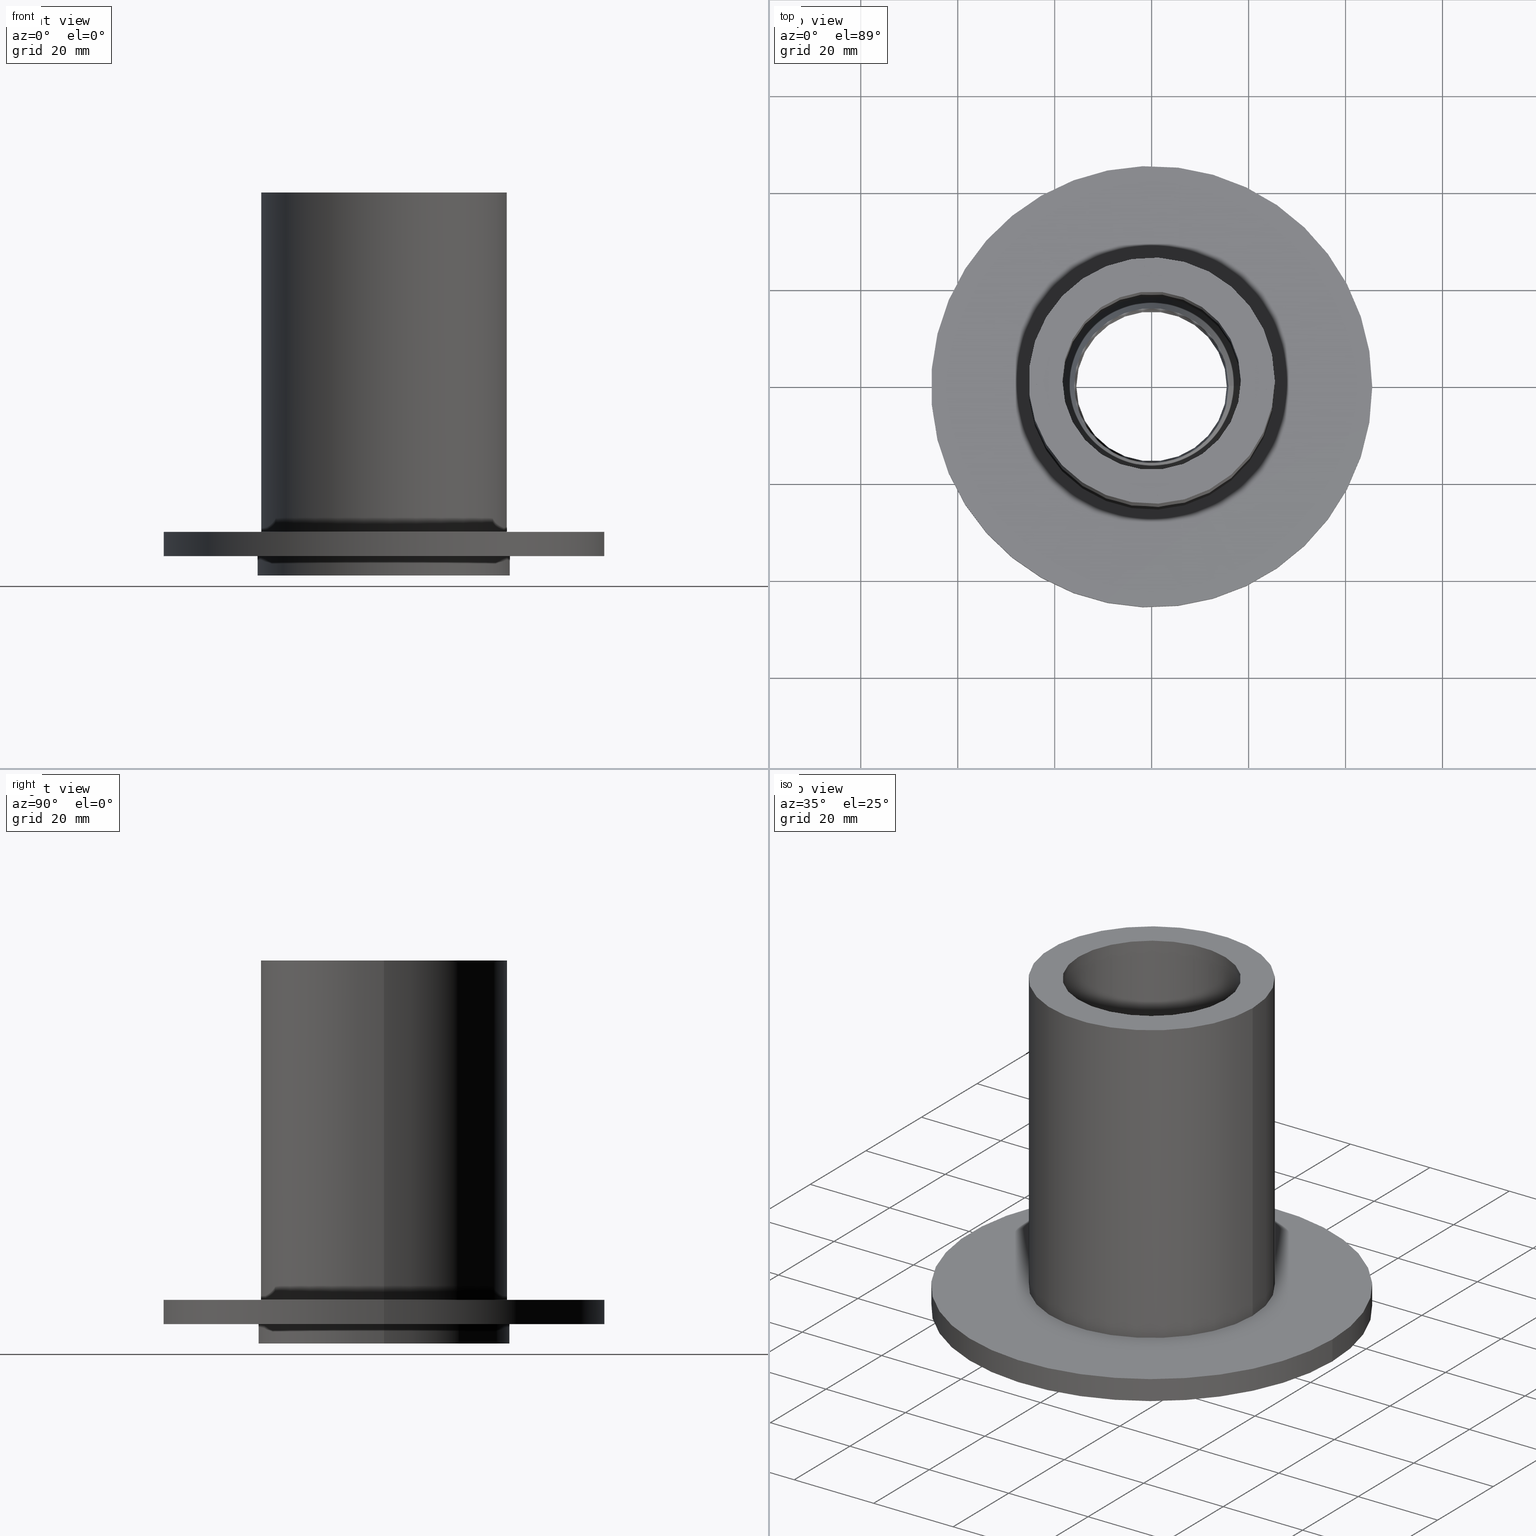
[diagram: canonical four-view strip — front | top / right | iso, engineering-drawing reading convention]
A machine part, canonical four-view strip (front | top / right | iso — engineering-drawing reading convention). The complete STEP part file that produces these views, byte-faithful:
ISO-10303-21;
HEADER;
/****************************************************************
 * Generated by software with PDElib inside                    *
 * PDElib Version v51a, created Wed 11/30/2011                  *
 * ITI Transcendata (http://www.transcendata.com/)              *
 ****************************************************************/
FILE_DESCRIPTION((''),'2;1');
FILE_NAME('N:\\Projects\\Ongoing_Projects\\12403 Transit Designer\\Product-data\\Product Data\\Transit designer Cad Generator\\F\S\vr att skapa STEP\\SLEEV-IT WT-MAR32M.stp','2014-11-17T14:09:10',('se-emikul'),(''),'Autodesk Inventor 2013','Autodesk Inventor 2013','');
FILE_SCHEMA(('AUTOMOTIVE_DESIGN { 1 0 10303 214 1 1 1 1 }'));
ENDSEC;
DATA;
#5=APPLICATION_CONTEXT('automotive design');
#6=APPLICATION_PROTOCOL_DEFINITION('International Standard','automotive_design',2001,#5);
#7=PRODUCT_CONTEXT('',#5,'mechanical');
#8=PRODUCT('SLEEV-IT WT-MAR32M','SLEEV-IT WT-MAR32M',$,(#7));
#9=PRODUCT_RELATED_PRODUCT_CATEGORY('part',$,(#8));
#10=PRODUCT_DEFINITION_FORMATION('',$,#8);
#11=PRODUCT_DEFINITION_CONTEXT('part definition',#5,'design');
#12=PRODUCT_DEFINITION('',$,#10,#11);
#18=(NAMED_UNIT(*)PLANE_ANGLE_UNIT()SI_UNIT($,.RADIAN.));
#19=DIMENSIONAL_EXPONENTS(0.0,0.0,0.0,0.0,0.0,0.0,0.0);
#20=PLANE_ANGLE_MEASURE_WITH_UNIT(PLANE_ANGLE_MEASURE(0.0174532925),#18);
#24=(CONVERSION_BASED_UNIT('DEGREE',#20)NAMED_UNIT(#19)PLANE_ANGLE_UNIT());
#28=(NAMED_UNIT(*)SI_UNIT($,.STERADIAN.)SOLID_ANGLE_UNIT());
#32=(LENGTH_UNIT()NAMED_UNIT(*)SI_UNIT(.MILLI.,.METRE.));
#34=UNCERTAINTY_MEASURE_WITH_UNIT(LENGTH_MEASURE(0.01),#32,'DISTANCE_ACCURACY_VALUE','');
#36=(GEOMETRIC_REPRESENTATION_CONTEXT(3)GLOBAL_UNCERTAINTY_ASSIGNED_CONTEXT((#34))GLOBAL_UNIT_ASSIGNED_CONTEXT((#24,#28,#32))REPRESENTATION_CONTEXT('None','None'));
#37=AXIS2_PLACEMENT_3D('',#38,#39,#40);
#38=CARTESIAN_POINT('',(0.0,0.0,0.0));
#39=DIRECTION('',(0.0,0.0,1.0));
#40=DIRECTION('',(1.0,0.0,0.0));
#41=SHAPE_REPRESENTATION('',(#37),#36);
#42=PRODUCT_DEFINITION_SHAPE('','',#12);
#43=SHAPE_DEFINITION_REPRESENTATION(#42,#41);
#49=(NAMED_UNIT(*)PLANE_ANGLE_UNIT()SI_UNIT($,.RADIAN.));
#50=DIMENSIONAL_EXPONENTS(0.0,0.0,0.0,0.0,0.0,0.0,0.0);
#51=PLANE_ANGLE_MEASURE_WITH_UNIT(PLANE_ANGLE_MEASURE(0.0174532925),#49);
#55=(CONVERSION_BASED_UNIT('DEGREE',#51)NAMED_UNIT(#50)PLANE_ANGLE_UNIT());
#59=(NAMED_UNIT(*)SI_UNIT($,.STERADIAN.)SOLID_ANGLE_UNIT());
#63=(LENGTH_UNIT()NAMED_UNIT(*)SI_UNIT(.MILLI.,.METRE.));
#65=UNCERTAINTY_MEASURE_WITH_UNIT(LENGTH_MEASURE(0.000001),#63,'DISTANCE_ACCURACY_VALUE','');
#67=(GEOMETRIC_REPRESENTATION_CONTEXT(3)GLOBAL_UNCERTAINTY_ASSIGNED_CONTEXT((#65))GLOBAL_UNIT_ASSIGNED_CONTEXT((#55,#59,#63))REPRESENTATION_CONTEXT('','3D'));
#68=CARTESIAN_POINT('',(0.0,0.0,0.0));
#69=DIRECTION('',(0.0,0.0,1.0));
#70=DIRECTION('',(-1.0,0.0,0.0));
#71=AXIS2_PLACEMENT_3D('',#68,#69,#70);
#72=CYLINDRICAL_SURFACE('',#71,23.800000000000004);
#73=CARTESIAN_POINT('',(23.800000000000004,2.914659E-015,70.0));
#74=VERTEX_POINT('',#73);
#75=CARTESIAN_POINT('',(0.0,0.0,70.0));
#76=DIRECTION('',(0.0,0.0,-1.0));
#77=DIRECTION('',(-1.0,0.0,0.0));
#78=AXIS2_PLACEMENT_3D('',#75,#76,#77);
#79=CIRCLE('',#78,23.800000000000004);
#80=EDGE_CURVE('',#74,#74,#79,.T.);
#81=ORIENTED_EDGE('',*,*,#80,.F.);
#82=EDGE_LOOP('',(#81));
#83=FACE_OUTER_BOUND('',#82,.T.);
#84=CARTESIAN_POINT('',(23.800000000000004,2.914659E-015,0.0));
#85=VERTEX_POINT('',#84);
#86=CARTESIAN_POINT('',(0.0,0.0,0.0));
#87=DIRECTION('',(0.0,0.0,1.0));
#88=DIRECTION('',(-1.0,0.0,0.0));
#89=AXIS2_PLACEMENT_3D('',#86,#87,#88);
#90=CIRCLE('',#89,23.800000000000004);
#91=EDGE_CURVE('',#85,#85,#90,.T.);
#92=ORIENTED_EDGE('',*,*,#91,.F.);
#93=EDGE_LOOP('',(#92));
#94=FACE_BOUND('',#93,.T.);
#95=ADVANCED_FACE('',(#83,#94),#72,.F.);
#96=CARTESIAN_POINT('',(0.0,0.0,0.0));
#97=DIRECTION('',(0.0,0.0,1.0));
#98=DIRECTION('',(-1.0,0.0,0.0));
#99=AXIS2_PLACEMENT_3D('',#96,#97,#98);
#100=CYLINDRICAL_SURFACE('',#99,25.399999999999999);
#101=CARTESIAN_POINT('',(25.399999999999999,3.110603E-015,70.0));
#102=VERTEX_POINT('',#101);
#103=CARTESIAN_POINT('',(0.0,0.0,70.0));
#104=DIRECTION('',(0.0,0.0,-1.0));
#105=DIRECTION('',(-1.0,0.0,0.0));
#106=AXIS2_PLACEMENT_3D('',#103,#104,#105);
#107=CIRCLE('',#106,25.399999999999999);
#108=EDGE_CURVE('',#102,#102,#107,.T.);
#109=ORIENTED_EDGE('',*,*,#108,.T.);
#110=EDGE_LOOP('',(#109));
#111=FACE_OUTER_BOUND('',#110,.T.);
#112=CARTESIAN_POINT('',(25.399999999999999,3.110603E-015,0.0));
#113=VERTEX_POINT('',#112);
#114=CARTESIAN_POINT('',(0.0,0.0,0.0));
#115=DIRECTION('',(0.0,0.0,-1.0));
#116=DIRECTION('',(-1.0,0.0,0.0));
#117=AXIS2_PLACEMENT_3D('',#114,#115,#116);
#118=CIRCLE('',#117,25.399999999999999);
#119=EDGE_CURVE('',#113,#113,#118,.T.);
#120=ORIENTED_EDGE('',*,*,#119,.F.);
#121=EDGE_LOOP('',(#120));
#122=FACE_BOUND('',#121,.T.);
#123=ADVANCED_FACE('',(#111,#122),#100,.T.);
#124=CARTESIAN_POINT('',(0.0,0.0,70.0));
#125=DIRECTION('',(0.0,0.0,-1.0));
#126=DIRECTION('',(-1.0,0.0,0.0));
#127=AXIS2_PLACEMENT_3D('',#124,#125,#126);
#128=PLANE('',#127);
#129=ORIENTED_EDGE('',*,*,#108,.F.);
#130=EDGE_LOOP('',(#129));
#131=FACE_OUTER_BOUND('',#130,.T.);
#132=ORIENTED_EDGE('',*,*,#80,.T.);
#133=EDGE_LOOP('',(#132));
#134=FACE_BOUND('',#133,.T.);
#135=ADVANCED_FACE('',(#131,#134),#128,.F.);
#136=CARTESIAN_POINT('',(0.0,0.0,0.0));
#137=DIRECTION('',(0.0,0.0,-1.0));
#138=DIRECTION('',(-1.0,0.0,0.0));
#139=AXIS2_PLACEMENT_3D('',#136,#137,#138);
#140=PLANE('',#139);
#141=ORIENTED_EDGE('',*,*,#119,.T.);
#142=EDGE_LOOP('',(#141));
#143=FACE_OUTER_BOUND('',#142,.T.);
#144=ORIENTED_EDGE('',*,*,#91,.T.);
#145=EDGE_LOOP('',(#144));
#146=FACE_BOUND('',#145,.T.);
#147=ADVANCED_FACE('',(#143,#146),#140,.T.);
#148=CLOSED_SHELL('',(#95,#123,#135,#147));
#149=MANIFOLD_SOLID_BREP('Solid1',#148);
#150=COLOUR_RGB('',0.878431379795074,0.874509811401367,0.858823537826538);
#151=FILL_AREA_STYLE_COLOUR('',#150);
#152=FILL_AREA_STYLE('',(#151));
#153=SURFACE_STYLE_FILL_AREA(#152);
#154=SURFACE_SIDE_STYLE('',(#153));
#155=SURFACE_STYLE_USAGE(.BOTH.,#154);
#156=PRESENTATION_STYLE_ASSIGNMENT((#155));
#157=STYLED_ITEM('',(#156),#95);
#158=STYLED_ITEM('',(#156),#123);
#159=STYLED_ITEM('',(#156),#135);
#160=STYLED_ITEM('',(#156),#147);
#161=MECHANICAL_DESIGN_GEOMETRIC_PRESENTATION_REPRESENTATION('',(#157,#158,#159,#160,#169,#283,#569,#772),#67);
#162=COLOUR_RGB('Default',0.75,0.75,0.75);
#163=FILL_AREA_STYLE_COLOUR('Default',#162);
#164=FILL_AREA_STYLE('Default',(#163));
#165=SURFACE_STYLE_FILL_AREA(#164);
#166=SURFACE_SIDE_STYLE('Default',(#165));
#167=SURFACE_STYLE_USAGE(.BOTH.,#166);
#168=PRESENTATION_STYLE_ASSIGNMENT((#167));
#169=STYLED_ITEM('',(#168),#149);
#170=ADVANCED_BREP_SHAPE_REPRESENTATION('ABSR',(#149,#277,#549,#755),#36);
#171=SHAPE_REPRESENTATION_RELATIONSHIP('SRR','None',#170,#41);
#177=(NAMED_UNIT(*)PLANE_ANGLE_UNIT()SI_UNIT($,.RADIAN.));
#178=DIMENSIONAL_EXPONENTS(0.0,0.0,0.0,0.0,0.0,0.0,0.0);
#179=PLANE_ANGLE_MEASURE_WITH_UNIT(PLANE_ANGLE_MEASURE(0.0174532925),#177);
#183=(CONVERSION_BASED_UNIT('DEGREE',#179)NAMED_UNIT(#178)PLANE_ANGLE_UNIT());
#187=(NAMED_UNIT(*)SI_UNIT($,.STERADIAN.)SOLID_ANGLE_UNIT());
#191=(LENGTH_UNIT()NAMED_UNIT(*)SI_UNIT(.MILLI.,.METRE.));
#193=UNCERTAINTY_MEASURE_WITH_UNIT(LENGTH_MEASURE(0.000001),#191,'DISTANCE_ACCURACY_VALUE','');
#195=(GEOMETRIC_REPRESENTATION_CONTEXT(3)GLOBAL_UNCERTAINTY_ASSIGNED_CONTEXT((#193))GLOBAL_UNIT_ASSIGNED_CONTEXT((#183,#187,#191))REPRESENTATION_CONTEXT('','3D'));
#196=CARTESIAN_POINT('',(0.0,0.0,-5.0));
#197=DIRECTION('',(0.0,0.0,1.0));
#198=DIRECTION('',(-1.0,0.0,0.0));
#199=AXIS2_PLACEMENT_3D('',#196,#197,#198);
#200=CYLINDRICAL_SURFACE('',#199,19.050000000000004);
#201=CARTESIAN_POINT('',(19.050000000000004,2.332952E-015,0.0));
#202=VERTEX_POINT('',#201);
#203=CARTESIAN_POINT('',(0.0,0.0,0.0));
#204=DIRECTION('',(0.0,0.0,-1.0));
#205=DIRECTION('',(-1.0,0.0,0.0));
#206=AXIS2_PLACEMENT_3D('',#203,#204,#205);
#207=CIRCLE('',#206,19.050000000000004);
#208=EDGE_CURVE('',#202,#202,#207,.T.);
#209=ORIENTED_EDGE('',*,*,#208,.F.);
#210=EDGE_LOOP('',(#209));
#211=FACE_OUTER_BOUND('',#210,.T.);
#212=CARTESIAN_POINT('',(19.050000000000004,2.332952E-015,-5.0));
#213=VERTEX_POINT('',#212);
#214=CARTESIAN_POINT('',(0.0,0.0,-5.0));
#215=DIRECTION('',(0.0,0.0,1.0));
#216=DIRECTION('',(-1.0,0.0,0.0));
#217=AXIS2_PLACEMENT_3D('',#214,#215,#216);
#218=CIRCLE('',#217,19.050000000000004);
#219=EDGE_CURVE('',#213,#213,#218,.T.);
#220=ORIENTED_EDGE('',*,*,#219,.F.);
#221=EDGE_LOOP('',(#220));
#222=FACE_BOUND('',#221,.T.);
#223=ADVANCED_FACE('',(#211,#222),#200,.F.);
#224=CARTESIAN_POINT('',(0.0,0.0,-5.0));
#225=DIRECTION('',(0.0,0.0,1.0));
#226=DIRECTION('',(-1.0,0.0,0.0));
#227=AXIS2_PLACEMENT_3D('',#224,#225,#226);
#228=CYLINDRICAL_SURFACE('',#227,45.5);
#229=CARTESIAN_POINT('',(45.5,5.572143E-015,0.0));
#230=VERTEX_POINT('',#229);
#231=CARTESIAN_POINT('',(0.0,0.0,0.0));
#232=DIRECTION('',(0.0,0.0,-1.0));
#233=DIRECTION('',(-1.0,0.0,0.0));
#234=AXIS2_PLACEMENT_3D('',#231,#232,#233);
#235=CIRCLE('',#234,45.5);
#236=EDGE_CURVE('',#230,#230,#235,.T.);
#237=ORIENTED_EDGE('',*,*,#236,.T.);
#238=EDGE_LOOP('',(#237));
#239=FACE_OUTER_BOUND('',#238,.T.);
#240=CARTESIAN_POINT('',(45.5,5.572143E-015,-5.0));
#241=VERTEX_POINT('',#240);
#242=CARTESIAN_POINT('',(0.0,0.0,-5.0));
#243=DIRECTION('',(0.0,0.0,-1.0));
#244=DIRECTION('',(-1.0,0.0,0.0));
#245=AXIS2_PLACEMENT_3D('',#242,#243,#244);
#246=CIRCLE('',#245,45.5);
#247=EDGE_CURVE('',#241,#241,#246,.T.);
#248=ORIENTED_EDGE('',*,*,#247,.F.);
#249=EDGE_LOOP('',(#248));
#250=FACE_BOUND('',#249,.T.);
#251=ADVANCED_FACE('',(#239,#250),#228,.T.);
#252=CARTESIAN_POINT('',(0.0,0.0,0.0));
#253=DIRECTION('',(0.0,0.0,-1.0));
#254=DIRECTION('',(-1.0,0.0,0.0));
#255=AXIS2_PLACEMENT_3D('',#252,#253,#254);
#256=PLANE('',#255);
#257=ORIENTED_EDGE('',*,*,#236,.F.);
#258=EDGE_LOOP('',(#257));
#259=FACE_OUTER_BOUND('',#258,.T.);
#260=ORIENTED_EDGE('',*,*,#208,.T.);
#261=EDGE_LOOP('',(#260));
#262=FACE_BOUND('',#261,.T.);
#263=ADVANCED_FACE('',(#259,#262),#256,.F.);
#264=CARTESIAN_POINT('',(0.0,0.0,-5.0));
#265=DIRECTION('',(0.0,0.0,-1.0));
#266=DIRECTION('',(-1.0,0.0,0.0));
#267=AXIS2_PLACEMENT_3D('',#264,#265,#266);
#268=PLANE('',#267);
#269=ORIENTED_EDGE('',*,*,#247,.T.);
#270=EDGE_LOOP('',(#269));
#271=FACE_OUTER_BOUND('',#270,.T.);
#272=ORIENTED_EDGE('',*,*,#219,.T.);
#273=EDGE_LOOP('',(#272));
#274=FACE_BOUND('',#273,.T.);
#275=ADVANCED_FACE('',(#271,#274),#268,.T.);
#276=CLOSED_SHELL('',(#223,#251,#263,#275));
#277=MANIFOLD_SOLID_BREP('Solid2',#276);
#278=STYLED_ITEM('',(#156),#223);
#279=STYLED_ITEM('',(#156),#251);
#280=STYLED_ITEM('',(#156),#263);
#281=STYLED_ITEM('',(#156),#275);
#282=MECHANICAL_DESIGN_GEOMETRIC_PRESENTATION_REPRESENTATION('',(#278,#279,#280,#281),#195);
#283=STYLED_ITEM('',(#168),#277);
#289=(NAMED_UNIT(*)PLANE_ANGLE_UNIT()SI_UNIT($,.RADIAN.));
#290=DIMENSIONAL_EXPONENTS(0.0,0.0,0.0,0.0,0.0,0.0,0.0);
#291=PLANE_ANGLE_MEASURE_WITH_UNIT(PLANE_ANGLE_MEASURE(0.0174532925),#289);
#295=(CONVERSION_BASED_UNIT('DEGREE',#291)NAMED_UNIT(#290)PLANE_ANGLE_UNIT());
#299=(NAMED_UNIT(*)SI_UNIT($,.STERADIAN.)SOLID_ANGLE_UNIT());
#303=(LENGTH_UNIT()NAMED_UNIT(*)SI_UNIT(.MILLI.,.METRE.));
#305=UNCERTAINTY_MEASURE_WITH_UNIT(LENGTH_MEASURE(0.000001),#303,'DISTANCE_ACCURACY_VALUE','');
#307=(GEOMETRIC_REPRESENTATION_CONTEXT(3)GLOBAL_UNCERTAINTY_ASSIGNED_CONTEXT((#305))GLOBAL_UNIT_ASSIGNED_CONTEXT((#295,#299,#303))REPRESENTATION_CONTEXT('','3D'));
#308=CARTESIAN_POINT('',(16.0,0.0,-5.999999999999998));
#309=DIRECTION('',(0.0,1.0,0.0));
#310=DIRECTION('',(0.0,0.0,-1.0));
#311=AXIS2_PLACEMENT_3D('',#308,#309,#310);
#312=ELLIPSE('',#311,2.5,0.5);
#313=CARTESIAN_POINT('',(0.0,0.0,-8.4999813353676));
#314=DIRECTION('',(0.0,0.0,-1.0));
#315=AXIS1_PLACEMENT('',#313,#314);
#316=SURFACE_OF_REVOLUTION('',#312,#315);
#317=CARTESIAN_POINT('',(15.999999999999998,0.0,-3.499999999999999));
#318=VERTEX_POINT('',#317);
#319=CARTESIAN_POINT('',(16.0,0.0,-8.5));
#320=VERTEX_POINT('',#319);
#321=CARTESIAN_POINT('',(16.0,0.0,-5.999999999999998));
#322=DIRECTION('',(0.0,-1.0,0.0));
#323=DIRECTION('',(0.0,0.0,-1.0));
#324=AXIS2_PLACEMENT_3D('',#321,#322,#323);
#325=ELLIPSE('',#324,2.5,0.5);
#326=EDGE_CURVE('',#318,#320,#325,.T.);
#327=ORIENTED_EDGE('',*,*,#326,.T.);
#328=CARTESIAN_POINT('',(0.0,0.0,-8.499999999999998));
#329=DIRECTION('',(0.0,0.0,1.0));
#330=DIRECTION('',(1.0,0.0,0.0));
#331=AXIS2_PLACEMENT_3D('',#328,#329,#330);
#332=CIRCLE('',#331,16.0);
#333=EDGE_CURVE('',#320,#320,#332,.T.);
#334=ORIENTED_EDGE('',*,*,#333,.F.);
#335=ORIENTED_EDGE('',*,*,#326,.F.);
#336=CARTESIAN_POINT('',(0.0,0.0,-3.499999999999999));
#337=DIRECTION('',(0.0,0.0,-1.0));
#338=DIRECTION('',(1.0,0.0,0.0));
#339=AXIS2_PLACEMENT_3D('',#336,#337,#338);
#340=CIRCLE('',#339,15.999999999999995);
#341=EDGE_CURVE('',#318,#318,#340,.T.);
#342=ORIENTED_EDGE('',*,*,#341,.F.);
#343=EDGE_LOOP('',(#327,#334,#335,#342));
#344=FACE_OUTER_BOUND('',#343,.T.);
#345=ADVANCED_FACE('',(#344),#316,.T.);
#346=CARTESIAN_POINT('',(15.999999999999998,0.0,7.0));
#347=DIRECTION('',(0.0,1.0,0.0));
#348=DIRECTION('',(0.0,0.0,-1.0));
#349=AXIS2_PLACEMENT_3D('',#346,#347,#348);
#350=ELLIPSE('',#349,2.5,0.5);
#351=CARTESIAN_POINT('',(0.0,0.0,9.496924999999997));
#352=DIRECTION('',(0.0,0.0,-1.0));
#353=AXIS1_PLACEMENT('',#351,#352);
#354=SURFACE_OF_REVOLUTION('',#350,#353);
#355=CARTESIAN_POINT('',(16.0,0.0,9.5));
#356=VERTEX_POINT('',#355);
#357=CARTESIAN_POINT('',(16.0,0.0,4.5));
#358=VERTEX_POINT('',#357);
#359=CARTESIAN_POINT('',(15.999999999999998,0.0,7.0));
#360=DIRECTION('',(0.0,-1.0,0.0));
#361=DIRECTION('',(0.0,0.0,-1.0));
#362=AXIS2_PLACEMENT_3D('',#359,#360,#361);
#363=ELLIPSE('',#362,2.5,0.5);
#364=EDGE_CURVE('',#356,#358,#363,.T.);
#365=ORIENTED_EDGE('',*,*,#364,.T.);
#366=CARTESIAN_POINT('',(0.0,0.0,4.5));
#367=DIRECTION('',(0.0,0.0,1.0));
#368=DIRECTION('',(1.0,0.0,0.0));
#369=AXIS2_PLACEMENT_3D('',#366,#367,#368);
#370=CIRCLE('',#369,16.0);
#371=EDGE_CURVE('',#358,#358,#370,.T.);
#372=ORIENTED_EDGE('',*,*,#371,.F.);
#373=ORIENTED_EDGE('',*,*,#364,.F.);
#374=CARTESIAN_POINT('',(0.0,0.0,9.5));
#375=DIRECTION('',(0.0,0.0,-1.0));
#376=DIRECTION('',(1.0,0.0,0.0));
#377=AXIS2_PLACEMENT_3D('',#374,#375,#376);
#378=CIRCLE('',#377,16.0);
#379=EDGE_CURVE('',#356,#356,#378,.T.);
#380=ORIENTED_EDGE('',*,*,#379,.F.);
#381=EDGE_LOOP('',(#365,#372,#373,#380));
#382=FACE_OUTER_BOUND('',#381,.T.);
#383=ADVANCED_FACE('',(#382),#354,.T.);
#384=CARTESIAN_POINT('',(0.0,0.0,0.499999999999999));
#385=DIRECTION('',(0.0,0.0,1.0));
#386=DIRECTION('',(1.0,0.0,0.0));
#387=AXIS2_PLACEMENT_3D('',#384,#385,#386);
#388=CYLINDRICAL_SURFACE('',#387,16.0);
#389=ORIENTED_EDGE('',*,*,#379,.T.);
#390=EDGE_LOOP('',(#389));
#391=FACE_OUTER_BOUND('',#390,.T.);
#392=CARTESIAN_POINT('',(16.000000000000007,0.0,10.0));
#393=VERTEX_POINT('',#392);
#394=CARTESIAN_POINT('',(0.0,0.0,10.0));
#395=DIRECTION('',(0.0,0.0,1.0));
#396=DIRECTION('',(1.0,0.0,0.0));
#397=AXIS2_PLACEMENT_3D('',#394,#395,#396);
#398=CIRCLE('',#397,16.000000000000007);
#399=EDGE_CURVE('',#393,#393,#398,.T.);
#400=ORIENTED_EDGE('',*,*,#399,.T.);
#401=EDGE_LOOP('',(#400));
#402=FACE_BOUND('',#401,.T.);
#403=ADVANCED_FACE('',(#391,#402),#388,.F.);
#404=CARTESIAN_POINT('',(0.0,0.0,0.499999999999999));
#405=DIRECTION('',(0.0,0.0,1.0));
#406=DIRECTION('',(1.0,0.0,0.0));
#407=AXIS2_PLACEMENT_3D('',#404,#405,#406);
#408=CYLINDRICAL_SURFACE('',#407,16.0);
#409=ORIENTED_EDGE('',*,*,#371,.T.);
#410=EDGE_LOOP('',(#409));
#411=FACE_OUTER_BOUND('',#410,.T.);
#412=ORIENTED_EDGE('',*,*,#341,.T.);
#413=EDGE_LOOP('',(#412));
#414=FACE_BOUND('',#413,.T.);
#415=ADVANCED_FACE('',(#411,#414),#408,.F.);
#416=CARTESIAN_POINT('',(0.0,0.0,-7.000000000000003));
#417=DIRECTION('',(0.0,0.0,1.0));
#418=DIRECTION('',(1.0,0.0,0.0));
#419=AXIS2_PLACEMENT_3D('',#416,#417,#418);
#420=CYLINDRICAL_SURFACE('',#419,26.0);
#421=CARTESIAN_POINT('',(26.0,0.0,-5.000000000000004));
#422=VERTEX_POINT('',#421);
#423=CARTESIAN_POINT('',(0.0,0.0,-5.000000000000004));
#424=DIRECTION('',(0.0,0.0,1.0));
#425=DIRECTION('',(1.0,0.0,0.0));
#426=AXIS2_PLACEMENT_3D('',#423,#424,#425);
#427=CIRCLE('',#426,26.0);
#428=EDGE_CURVE('',#422,#422,#427,.T.);
#429=ORIENTED_EDGE('',*,*,#428,.F.);
#430=EDGE_LOOP('',(#429));
#431=FACE_OUTER_BOUND('',#430,.T.);
#432=CARTESIAN_POINT('',(26.0,0.0,-9.000000000000002));
#433=VERTEX_POINT('',#432);
#434=CARTESIAN_POINT('',(0.0,0.0,-9.000000000000002));
#435=DIRECTION('',(0.0,0.0,1.0));
#436=DIRECTION('',(1.0,0.0,0.0));
#437=AXIS2_PLACEMENT_3D('',#434,#435,#436);
#438=CIRCLE('',#437,26.0);
#439=EDGE_CURVE('',#433,#433,#438,.T.);
#440=ORIENTED_EDGE('',*,*,#439,.T.);
#441=EDGE_LOOP('',(#440));
#442=FACE_BOUND('',#441,.T.);
#443=ADVANCED_FACE('',(#431,#442),#420,.T.);
#444=CARTESIAN_POINT('',(22.750000000000004,0.0,-5.000000000000002));
#445=DIRECTION('',(0.0,0.0,1.0));
#446=DIRECTION('',(0.0,-1.0,0.0));
#447=AXIS2_PLACEMENT_3D('',#444,#445,#446);
#448=PLANE('',#447);
#449=ORIENTED_EDGE('',*,*,#428,.T.);
#450=EDGE_LOOP('',(#449));
#451=FACE_OUTER_BOUND('',#450,.T.);
#452=CARTESIAN_POINT('',(19.500000000000007,0.0,-5.0));
#453=VERTEX_POINT('',#452);
#454=CARTESIAN_POINT('',(0.0,0.0,-5.0));
#455=DIRECTION('',(0.0,0.0,1.0));
#456=DIRECTION('',(1.0,0.0,0.0));
#457=AXIS2_PLACEMENT_3D('',#454,#455,#456);
#458=CIRCLE('',#457,19.500000000000007);
#459=EDGE_CURVE('',#453,#453,#458,.T.);
#460=ORIENTED_EDGE('',*,*,#459,.F.);
#461=EDGE_LOOP('',(#460));
#462=FACE_BOUND('',#461,.T.);
#463=ADVANCED_FACE('',(#451,#462),#448,.T.);
#464=CARTESIAN_POINT('',(0.0,0.0,-2.5));
#465=DIRECTION('',(0.0,0.0,1.0));
#466=DIRECTION('',(1.0,0.0,0.0));
#467=AXIS2_PLACEMENT_3D('',#464,#465,#466);
#468=CYLINDRICAL_SURFACE('',#467,19.500000000000007);
#469=CARTESIAN_POINT('',(19.500000000000007,0.0,-1.110223E-015));
#470=VERTEX_POINT('',#469);
#471=CARTESIAN_POINT('',(0.0,0.0,-1.110223E-015));
#472=DIRECTION('',(0.0,0.0,1.0));
#473=DIRECTION('',(1.0,0.0,0.0));
#474=AXIS2_PLACEMENT_3D('',#471,#472,#473);
#475=CIRCLE('',#474,19.500000000000007);
#476=EDGE_CURVE('',#470,#470,#475,.T.);
#477=ORIENTED_EDGE('',*,*,#476,.F.);
#478=EDGE_LOOP('',(#477));
#479=FACE_OUTER_BOUND('',#478,.T.);
#480=ORIENTED_EDGE('',*,*,#459,.T.);
#481=EDGE_LOOP('',(#480));
#482=FACE_BOUND('',#481,.T.);
#483=ADVANCED_FACE('',(#479,#482),#468,.T.);
#484=CARTESIAN_POINT('',(21.251037691048555,0.0,-2.220446E-015));
#485=DIRECTION('',(0.0,0.0,-1.0));
#486=DIRECTION('',(0.0,1.0,0.0));
#487=AXIS2_PLACEMENT_3D('',#484,#485,#486);
#488=PLANE('',#487);
#489=CARTESIAN_POINT('',(23.0020753820971,0.0,-2.220446E-015));
#490=VERTEX_POINT('',#489);
#491=CARTESIAN_POINT('',(0.0,0.0,-2.220446E-015));
#492=DIRECTION('',(0.0,0.0,1.0));
#493=DIRECTION('',(1.0,0.0,0.0));
#494=AXIS2_PLACEMENT_3D('',#491,#492,#493);
#495=CIRCLE('',#494,23.0020753820971);
#496=EDGE_CURVE('',#490,#490,#495,.T.);
#497=ORIENTED_EDGE('',*,*,#496,.F.);
#498=EDGE_LOOP('',(#497));
#499=FACE_OUTER_BOUND('',#498,.T.);
#500=ORIENTED_EDGE('',*,*,#476,.T.);
#501=EDGE_LOOP('',(#500));
#502=FACE_BOUND('',#501,.T.);
#503=ADVANCED_FACE('',(#499,#502),#488,.T.);
#504=CARTESIAN_POINT('',(0.0,0.0,5.0));
#505=DIRECTION('',(0.0,0.0,-1.0));
#506=DIRECTION('',(1.0,0.0,0.0));
#507=AXIS2_PLACEMENT_3D('',#504,#505,#506);
#508=CONICAL_SURFACE('',#507,19.501037691048552,34.999999999999986);
#509=ORIENTED_EDGE('',*,*,#399,.F.);
#510=EDGE_LOOP('',(#509));
#511=FACE_OUTER_BOUND('',#510,.T.);
#512=ORIENTED_EDGE('',*,*,#496,.T.);
#513=EDGE_LOOP('',(#512));
#514=FACE_BOUND('',#513,.T.);
#515=ADVANCED_FACE('',(#511,#514),#508,.T.);
#516=CARTESIAN_POINT('',(0.0,0.0,0.499999999999999));
#517=DIRECTION('',(0.0,0.0,1.0));
#518=DIRECTION('',(1.0,0.0,0.0));
#519=AXIS2_PLACEMENT_3D('',#516,#517,#518);
#520=CYLINDRICAL_SURFACE('',#519,16.0);
#521=ORIENTED_EDGE('',*,*,#333,.T.);
#522=EDGE_LOOP('',(#521));
#523=FACE_OUTER_BOUND('',#522,.T.);
#524=CARTESIAN_POINT('',(15.999999999999996,0.0,-9.000000000000002));
#525=VERTEX_POINT('',#524);
#526=CARTESIAN_POINT('',(0.0,0.0,-9.000000000000002));
#527=DIRECTION('',(0.0,0.0,1.0));
#528=DIRECTION('',(1.0,0.0,0.0));
#529=AXIS2_PLACEMENT_3D('',#526,#527,#528);
#530=CIRCLE('',#529,15.999999999999996);
#531=EDGE_CURVE('',#525,#525,#530,.T.);
#532=ORIENTED_EDGE('',*,*,#531,.F.);
#533=EDGE_LOOP('',(#532));
#534=FACE_BOUND('',#533,.T.);
#535=ADVANCED_FACE('',(#523,#534),#520,.F.);
#536=CARTESIAN_POINT('',(20.999999999999996,0.0,-9.000000000000002));
#537=DIRECTION('',(0.0,0.0,-1.0));
#538=DIRECTION('',(0.0,1.0,0.0));
#539=AXIS2_PLACEMENT_3D('',#536,#537,#538);
#540=PLANE('',#539);
#541=ORIENTED_EDGE('',*,*,#439,.F.);
#542=EDGE_LOOP('',(#541));
#543=FACE_OUTER_BOUND('',#542,.T.);
#544=ORIENTED_EDGE('',*,*,#531,.T.);
#545=EDGE_LOOP('',(#544));
#546=FACE_BOUND('',#545,.T.);
#547=ADVANCED_FACE('',(#543,#546),#540,.T.);
#548=CLOSED_SHELL('',(#345,#383,#403,#415,#443,#463,#483,#503,#515,#535,#547));
#549=MANIFOLD_SOLID_BREP('Solid3',#548);
#550=COLOUR_RGB('',0.25,0.25,0.25);
#551=FILL_AREA_STYLE_COLOUR('',#550);
#552=FILL_AREA_STYLE('',(#551));
#553=SURFACE_STYLE_FILL_AREA(#552);
#554=SURFACE_SIDE_STYLE('',(#553));
#555=SURFACE_STYLE_USAGE(.BOTH.,#554);
#556=PRESENTATION_STYLE_ASSIGNMENT((#555));
#557=STYLED_ITEM('',(#556),#345);
#558=STYLED_ITEM('',(#556),#383);
#559=STYLED_ITEM('',(#556),#403);
#560=STYLED_ITEM('',(#556),#415);
#561=STYLED_ITEM('',(#556),#443);
#562=STYLED_ITEM('',(#556),#463);
#563=STYLED_ITEM('',(#556),#483);
#564=STYLED_ITEM('',(#556),#503);
#565=STYLED_ITEM('',(#556),#515);
#566=STYLED_ITEM('',(#556),#535);
#567=STYLED_ITEM('',(#556),#547);
#568=MECHANICAL_DESIGN_GEOMETRIC_PRESENTATION_REPRESENTATION('',(#557,#558,#559,#560,#561,#562,#563,#564,#565,#566,#567),#307);
#569=STYLED_ITEM('',(#168),#549);
#575=(NAMED_UNIT(*)PLANE_ANGLE_UNIT()SI_UNIT($,.RADIAN.));
#576=DIMENSIONAL_EXPONENTS(0.0,0.0,0.0,0.0,0.0,0.0,0.0);
#577=PLANE_ANGLE_MEASURE_WITH_UNIT(PLANE_ANGLE_MEASURE(0.0174532925),#575);
#581=(CONVERSION_BASED_UNIT('DEGREE',#577)NAMED_UNIT(#576)PLANE_ANGLE_UNIT());
#585=(NAMED_UNIT(*)SI_UNIT($,.STERADIAN.)SOLID_ANGLE_UNIT());
#589=(LENGTH_UNIT()NAMED_UNIT(*)SI_UNIT(.MILLI.,.METRE.));
#591=UNCERTAINTY_MEASURE_WITH_UNIT(LENGTH_MEASURE(0.000001),#589,'DISTANCE_ACCURACY_VALUE','');
#593=(GEOMETRIC_REPRESENTATION_CONTEXT(3)GLOBAL_UNCERTAINTY_ASSIGNED_CONTEXT((#591))GLOBAL_UNIT_ASSIGNED_CONTEXT((#581,#585,#589))REPRESENTATION_CONTEXT('','3D'));
#594=CARTESIAN_POINT('',(0.0,0.0,10.0));
#595=DIRECTION('',(0.0,0.0,1.0));
#596=DIRECTION('',(-1.0,0.0,0.0));
#597=AXIS2_PLACEMENT_3D('',#594,#595,#596);
#598=CYLINDRICAL_SURFACE('',#597,18.400000000000002);
#599=CARTESIAN_POINT('',(18.400000000000002,2.253350E-015,70.0));
#600=VERTEX_POINT('',#599);
#601=CARTESIAN_POINT('',(0.0,0.0,70.0));
#602=DIRECTION('',(0.0,0.0,-1.0));
#603=DIRECTION('',(-1.0,0.0,0.0));
#604=AXIS2_PLACEMENT_3D('',#601,#602,#603);
#605=CIRCLE('',#604,18.400000000000002);
#606=EDGE_CURVE('',#600,#600,#605,.T.);
#607=ORIENTED_EDGE('',*,*,#606,.F.);
#608=EDGE_LOOP('',(#607));
#609=FACE_OUTER_BOUND('',#608,.T.);
#610=CARTESIAN_POINT('',(18.400000000000002,2.253350E-015,10.0));
#611=VERTEX_POINT('',#610);
#612=CARTESIAN_POINT('',(0.0,0.0,10.0));
#613=DIRECTION('',(0.0,0.0,1.0));
#614=DIRECTION('',(-1.0,0.0,0.0));
#615=AXIS2_PLACEMENT_3D('',#612,#613,#614);
#616=CIRCLE('',#615,18.400000000000002);
#617=EDGE_CURVE('',#611,#611,#616,.T.);
#618=ORIENTED_EDGE('',*,*,#617,.F.);
#619=EDGE_LOOP('',(#618));
#620=FACE_BOUND('',#619,.T.);
#621=ADVANCED_FACE('',(#609,#620),#598,.F.);
#622=CARTESIAN_POINT('',(-9.389694E-016,3.664102E-016,70.0));
#623=DIRECTION('',(0.0,0.0,1.0));
#624=DIRECTION('',(1.0,0.0,0.0));
#625=AXIS2_PLACEMENT_3D('',#622,#623,#624);
#626=PLANE('',#625);
#627=CARTESIAN_POINT('',(20.199999999999999,2.473787E-015,70.0));
#628=VERTEX_POINT('',#627);
#629=CARTESIAN_POINT('',(0.0,0.0,70.0));
#630=DIRECTION('',(0.0,0.0,-1.0));
#631=DIRECTION('',(-1.0,0.0,0.0));
#632=AXIS2_PLACEMENT_3D('',#629,#630,#631);
#633=CIRCLE('',#632,20.199999999999999);
#634=EDGE_CURVE('',#628,#628,#633,.T.);
#635=ORIENTED_EDGE('',*,*,#634,.F.);
#636=EDGE_LOOP('',(#635));
#637=FACE_OUTER_BOUND('',#636,.T.);
#638=ORIENTED_EDGE('',*,*,#606,.T.);
#639=EDGE_LOOP('',(#638));
#640=FACE_BOUND('',#639,.T.);
#641=ADVANCED_FACE('',(#637,#640),#626,.T.);
#642=CARTESIAN_POINT('',(-9.389694E-016,3.664102E-016,10.0));
#643=DIRECTION('',(0.0,0.0,1.0));
#644=DIRECTION('',(1.0,0.0,0.0));
#645=AXIS2_PLACEMENT_3D('',#642,#643,#644);
#646=PLANE('',#645);
#647=CARTESIAN_POINT('',(20.199999999999999,2.473787E-015,10.0));
#648=VERTEX_POINT('',#647);
#649=CARTESIAN_POINT('',(0.0,0.0,10.0));
#650=DIRECTION('',(0.0,0.0,1.0));
#651=DIRECTION('',(-1.0,0.0,0.0));
#652=AXIS2_PLACEMENT_3D('',#649,#650,#651);
#653=CIRCLE('',#652,20.199999999999999);
#654=EDGE_CURVE('',#648,#648,#653,.T.);
#655=ORIENTED_EDGE('',*,*,#654,.F.);
#656=EDGE_LOOP('',(#655));
#657=FACE_OUTER_BOUND('',#656,.T.);
#658=ORIENTED_EDGE('',*,*,#617,.T.);
#659=EDGE_LOOP('',(#658));
#660=FACE_BOUND('',#659,.T.);
#661=ADVANCED_FACE('',(#657,#660),#646,.F.);
#662=CARTESIAN_POINT('',(0.0,0.0,70.0));
#663=DIRECTION('',(0.0,0.0,-1.0));
#664=DIRECTION('',(-1.0,0.0,0.0));
#665=AXIS2_PLACEMENT_3D('',#662,#663,#664);
#666=PLANE('',#665);
#667=CARTESIAN_POINT('',(22.0,2.694223E-015,70.0));
#668=VERTEX_POINT('',#667);
#669=CARTESIAN_POINT('',(0.0,0.0,70.0));
#670=DIRECTION('',(0.0,0.0,-1.0));
#671=DIRECTION('',(-1.0,0.0,0.0));
#672=AXIS2_PLACEMENT_3D('',#669,#670,#671);
#673=CIRCLE('',#672,22.0);
#674=EDGE_CURVE('',#668,#668,#673,.T.);
#675=ORIENTED_EDGE('',*,*,#674,.F.);
#676=EDGE_LOOP('',(#675));
#677=FACE_OUTER_BOUND('',#676,.T.);
#678=ORIENTED_EDGE('',*,*,#634,.T.);
#679=EDGE_LOOP('',(#678));
#680=FACE_BOUND('',#679,.T.);
#681=ADVANCED_FACE('',(#677,#680),#666,.F.);
#682=CARTESIAN_POINT('',(0.0,0.0,10.0));
#683=DIRECTION('',(0.0,0.0,-1.0));
#684=DIRECTION('',(-1.0,0.0,0.0));
#685=AXIS2_PLACEMENT_3D('',#682,#683,#684);
#686=PLANE('',#685);
#687=CARTESIAN_POINT('',(22.0,2.694223E-015,10.0));
#688=VERTEX_POINT('',#687);
#689=CARTESIAN_POINT('',(0.0,0.0,10.0));
#690=DIRECTION('',(0.0,0.0,1.0));
#691=DIRECTION('',(-1.0,0.0,0.0));
#692=AXIS2_PLACEMENT_3D('',#689,#690,#691);
#693=CIRCLE('',#692,22.0);
#694=EDGE_CURVE('',#688,#688,#693,.T.);
#695=ORIENTED_EDGE('',*,*,#694,.F.);
#696=EDGE_LOOP('',(#695));
#697=FACE_OUTER_BOUND('',#696,.T.);
#698=ORIENTED_EDGE('',*,*,#654,.T.);
#699=EDGE_LOOP('',(#698));
#700=FACE_BOUND('',#699,.T.);
#701=ADVANCED_FACE('',(#697,#700),#686,.T.);
#702=CARTESIAN_POINT('',(0.0,0.0,10.0));
#703=DIRECTION('',(0.0,0.0,1.0));
#704=DIRECTION('',(-1.0,0.0,0.0));
#705=AXIS2_PLACEMENT_3D('',#702,#703,#704);
#706=CYLINDRICAL_SURFACE('',#705,23.800000000000004);
#707=CARTESIAN_POINT('',(23.800000000000004,2.914659E-015,70.0));
#708=VERTEX_POINT('',#707);
#709=CARTESIAN_POINT('',(0.0,0.0,70.0));
#710=DIRECTION('',(0.0,0.0,-1.0));
#711=DIRECTION('',(-1.0,0.0,0.0));
#712=AXIS2_PLACEMENT_3D('',#709,#710,#711);
#713=CIRCLE('',#712,23.800000000000004);
#714=EDGE_CURVE('',#708,#708,#713,.T.);
#715=ORIENTED_EDGE('',*,*,#714,.T.);
#716=EDGE_LOOP('',(#715));
#717=FACE_OUTER_BOUND('',#716,.T.);
#718=CARTESIAN_POINT('',(23.800000000000004,2.914659E-015,10.0));
#719=VERTEX_POINT('',#718);
#720=CARTESIAN_POINT('',(0.0,0.0,10.0));
#721=DIRECTION('',(0.0,0.0,-1.0));
#722=DIRECTION('',(-1.0,0.0,0.0));
#723=AXIS2_PLACEMENT_3D('',#720,#721,#722);
#724=CIRCLE('',#723,23.800000000000004);
#725=EDGE_CURVE('',#719,#719,#724,.T.);
#726=ORIENTED_EDGE('',*,*,#725,.F.);
#727=EDGE_LOOP('',(#726));
#728=FACE_BOUND('',#727,.T.);
#729=ADVANCED_FACE('',(#717,#728),#706,.T.);
#730=CARTESIAN_POINT('',(0.0,0.0,70.0));
#731=DIRECTION('',(0.0,0.0,-1.0));
#732=DIRECTION('',(-1.0,0.0,0.0));
#733=AXIS2_PLACEMENT_3D('',#730,#731,#732);
#734=PLANE('',#733);
#735=ORIENTED_EDGE('',*,*,#714,.F.);
#736=EDGE_LOOP('',(#735));
#737=FACE_OUTER_BOUND('',#736,.T.);
#738=ORIENTED_EDGE('',*,*,#674,.T.);
#739=EDGE_LOOP('',(#738));
#740=FACE_BOUND('',#739,.T.);
#741=ADVANCED_FACE('',(#737,#740),#734,.F.);
#742=CARTESIAN_POINT('',(0.0,0.0,10.0));
#743=DIRECTION('',(0.0,0.0,-1.0));
#744=DIRECTION('',(-1.0,0.0,0.0));
#745=AXIS2_PLACEMENT_3D('',#742,#743,#744);
#746=PLANE('',#745);
#747=ORIENTED_EDGE('',*,*,#725,.T.);
#748=EDGE_LOOP('',(#747));
#749=FACE_OUTER_BOUND('',#748,.T.);
#750=ORIENTED_EDGE('',*,*,#694,.T.);
#751=EDGE_LOOP('',(#750));
#752=FACE_BOUND('',#751,.T.);
#753=ADVANCED_FACE('',(#749,#752),#746,.T.);
#754=CLOSED_SHELL('',(#621,#641,#661,#681,#701,#729,#741,#753));
#755=MANIFOLD_SOLID_BREP('Solid4',#754);
#756=COLOUR_RGB('',0.270000010728836,0.270000010728836,0.270000010728836);
#757=FILL_AREA_STYLE_COLOUR('',#756);
#758=FILL_AREA_STYLE('',(#757));
#759=SURFACE_STYLE_FILL_AREA(#758);
#760=SURFACE_SIDE_STYLE('',(#759));
#761=SURFACE_STYLE_USAGE(.BOTH.,#760);
#762=PRESENTATION_STYLE_ASSIGNMENT((#761));
#763=STYLED_ITEM('',(#762),#621);
#764=STYLED_ITEM('',(#762),#641);
#765=STYLED_ITEM('',(#762),#661);
#766=STYLED_ITEM('',(#762),#681);
#767=STYLED_ITEM('',(#762),#701);
#768=STYLED_ITEM('',(#762),#729);
#769=STYLED_ITEM('',(#762),#741);
#770=STYLED_ITEM('',(#762),#753);
#771=MECHANICAL_DESIGN_GEOMETRIC_PRESENTATION_REPRESENTATION('',(#763,#764,#765,#766,#767,#768,#769,#770),#593);
#772=STYLED_ITEM('',(#168),#755);
ENDSEC;
END-ISO-10303-21;
